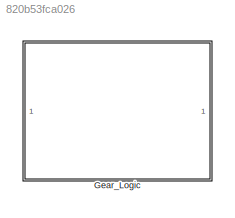
MODEL slx_820b53fca026
KIND model
CONFIG AbsTol = auto
CONFIG EnableMultiTasking = on
CONFIG FixedStep = 0.01
CONFIG MaxStep = auto
CONFIG MinStep = auto
CONFIG RelTol = 1e-3
CONFIG SampleTimeConstraint = Unconstrained
CONFIG SolverName = FixedStepAuto
CONFIG StartTime = 0.0
CONFIG StopTime = 30
WORKSPACE source: mxarray member
WORKSPACE Var = 0
WORKSPACE downtab = [0 0 0 0 0 0 5 5 5 5 30 30 ... (24 elements, 6x4)]
WORKSPACE downth = [0 5 40 50 90 100]
WORKSPACE uptab = [10 10 15 23 40 40 30 30 30 41 70 70 ... (24 elements, 6x4)]
WORKSPACE upth = [0 25 35 50 90 100]
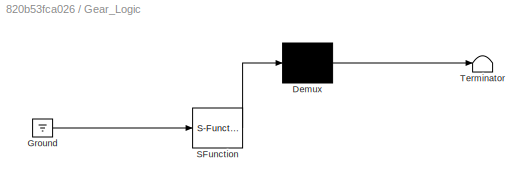
BLOCK [SubSystem] Gear_Logic
  ErrorFcn = Stateflow.Translate.translate
  PermitHierarchicalResolution = ExplicitOnly
  Ports = []
  RequestExecContextInheritance = off
  SFBlockType = Chart
  TreatAsAtomicUnit = on
BLOCK [Demux] Gear_Logic/ Demux 
  Outputs = 1
  Ports = [1, 1]
BLOCK [Ground] Gear_Logic/ Ground 
BLOCK [S-Function] Gear_Logic/ SFunction 
  EnableBusSupport = on
  FunctionName = sf_sfun
  PortCounts = [1 1]
  Ports = [1, 1]
  SFcnIsStateOwnerBlock = off
  SFunctionDeploymentMode = off
  Tag = Stateflow S-Function 3
BLOCK [Terminator] Gear_Logic/ Terminator 
CHART Gear_Logic states=10 transitions=14
  STATE_LABEL 'gear_state\n%on SlowDown: delta = -1;\n%on Cruise: delta = 0;\n%on SpeedUp: delta = 1;\nduring:\nspeed = max(0,min(speed+delta,100));'
  STATE_LABEL 'first\nentry:\ngear=1;'
  STATE_LABEL 'second\nentry:\ngear=2;'
  STATE_LABEL 'third\nentry:\ngear=3;'
  STATE_LABEL 'fourth\nentry:\ngear=4;'
  STATE_LABEL 'UP'
  STATE_LABEL 'UP'
  STATE_LABEL 'UP'
  STATE_LABEL 'DOWN'
  STATE_LABEL 'DOWN'
  STATE_LABEL 'DOWN'
  STATE_LABEL 'first\nentry:\ngear=1;'
  STATE_LABEL 'second\nentry:\ngear=2;'
  STATE_LABEL 'third\nentry:\ngear=3;'
  STATE_LABEL 'fourth\nentry:\ngear=4;'
  STATE_LABEL 'selection_state\nduring:\ncomputeThresholds();'
  STATE_LABEL 'steady_state'
  STATE_LABEL 'downshifting'
  STATE_LABEL 'upshifting'
  STATE_LABEL '[speed < down_th]'
  STATE_LABEL '[speed > up_th]'
  STATE_LABEL 'after(0.1, sec)\n[speed <= down_th]\n{send(DOWN, gear_state);}'
  STATE_LABEL '[speed > down_th]'
  STATE_LABEL 'after(0.1, sec)\n[speed >= up_th]\n{send(UP,gear_state);}'
  STATE_LABEL '[speed < up_th]'
  STATE_LABEL 'steady_state'
  STATE_LABEL 'downshifting'
  STATE_LABEL 'upshifting'
  STATE_LABEL 'computeThresholds'
  STATE_LABEL "SCRIPT:\nfunction computeThresholds\n    \n    % turn gear light on and set tachometer coefficients\n    switch gear\n        case 1\n            down_th = 0;\n            up_th = 10;\n            rev = interp1([0 10],[0.5 6.5],speed,'pchip','extrap');\n        case 2\n            rev = interp1([5 10 30],[0.5 1 6.5],speed,'pchip','extrap');\n            down_th = 5;\n            up_th = 30;\n        case 3\n   ...<+272ch>"
CHART  states=0 transitions=0
